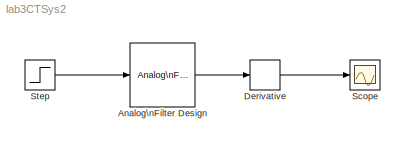
MODEL lab3CTSys2
KIND model
BLOCK [Reference] Analog\nFilter Design  REF=dsparch4/Analog\nFilter Design
  N = 4
  Ports = [1, 1]
  Rp = 2
  Rs = 40
  SID = 8
  SourceBlock = dsparch4/Analog\nFilter Design
  SourceProductBaseCode = DS
  SourceType = Analog Filter Design
  Whi = 80
  Wlo = 2*pi
  filttype = Lowpass
  method = Butterworth
BLOCK [Derivative] Derivative
  SID = 5
BLOCK [Scope] Scope
  Floating = off
  NumInputPorts = 1
  Ports = [1]
  SID = 6
  ScopeSpecificationString = Simulink.scopes.TimeScopeBlockCfg('CurrentConfiguration', extmgr.ConfigurationSet(extmgr.Configuration('Core','General UI',true),extmgr.Configuration('Core','Source UI',true),extmgr.Configuration('Sources','WiredSimulink',true,'DataLoggingSaveFormat','Array','DataLoggingLimitDataPoints',true,'DataLoggingDecimation','1','DataLoggingDecimateData',true),extmgr.Configuration('Visuals','Time Domain',tr...<+1660ch>
BLOCK [Step] Step
  SID = 7
  SampleTime = 0
  Time = 0.00001
LINE Analog\nFilter Design:1 -> Derivative:1
LINE Derivative:1 -> Scope:1
LINE Step:1 -> Analog\nFilter Design:1
